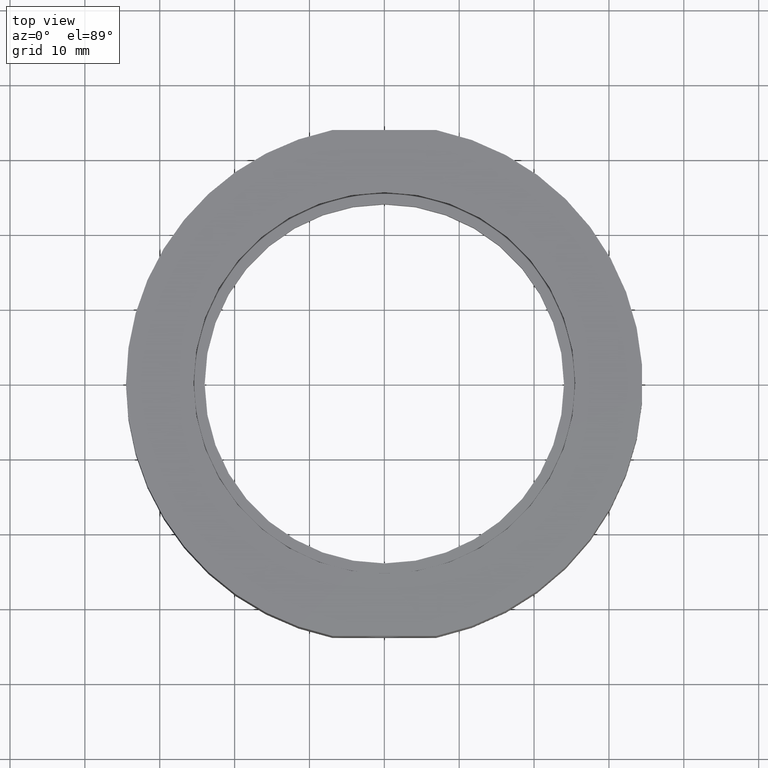
[diagram: clean part render]
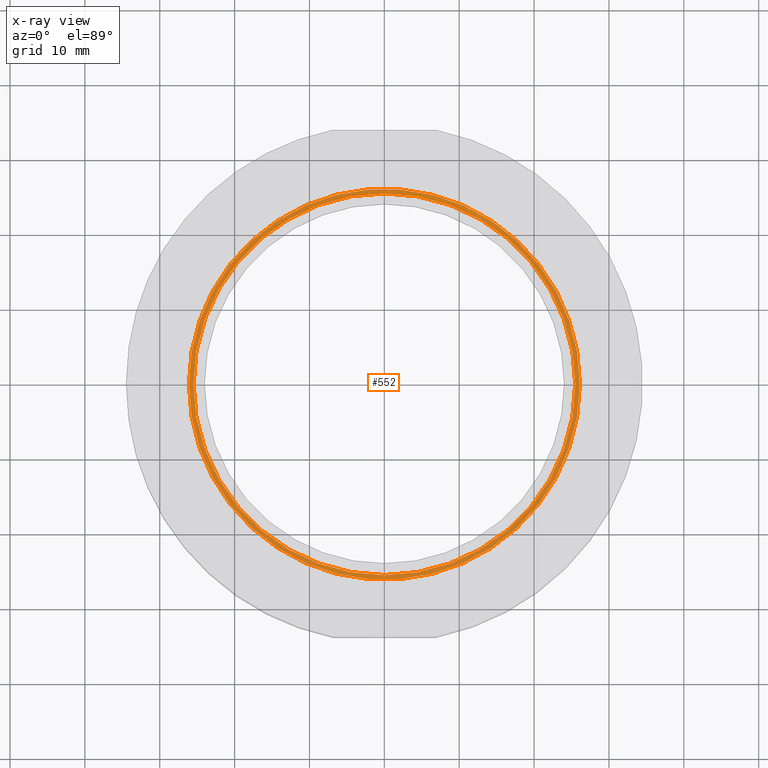
[diagram: x-ray — body ghosted, one internal face saturated and labeled with its STEP entity id]
A machine part, top view, then the same camera in x-ray: the body is ghosted and one INTERNAL B-rep face — a face not visible from any outside direction — is saturated and labeled: STEP entity #552.
In plain terms, the highlighted planar face has unit normal (-0, 0, -1).
Its self-contained STEP definition (entity closure, byte-faithful):
#20 = CARTESIAN_POINT ( 'NONE',  ( 3.544013711941110900E-015, 0.0000000000000000000, -2.999999999999999100 ) ) ;
#26 = CIRCLE ( 'NONE', #875, 25.50000000000000000 ) ;
#62 = ORIENTED_EDGE ( 'NONE', *, *, #655, .F. ) ;
#76 = CARTESIAN_POINT ( 'NONE',  ( 3.544013711941110900E-015, 0.0000000000000000000, -2.999999999999999100 ) ) ;
#109 = DIRECTION ( 'NONE',  ( -1.224646799147350500E-016, -0.0000000000000000000, -1.000000000000000000 ) ) ;
#140 = CARTESIAN_POINT ( 'NONE',  ( 25.50000000000000400, 3.122849337825750200E-015, -3.000000000000002200 ) ) ;
#157 = DIRECTION ( 'NONE',  ( -1.000000000000000000, 0.0000000000000000000, 1.190496503121338200E-016 ) ) ;
#171 = VERTEX_POINT ( 'NONE', #665 ) ;
#221 = VERTEX_POINT ( 'NONE', #140 ) ;
#230 = CIRCLE ( 'NONE', #289, 25.50000000000000000 ) ;
#231 = DIRECTION ( 'NONE',  ( -1.224646799147350500E-016, -0.0000000000000000000, -1.000000000000000000 ) ) ;
#258 = DIRECTION ( 'NONE',  ( -1.224646799147350500E-016, -0.0000000000000000000, -1.000000000000000000 ) ) ;
#289 = AXIS2_PLACEMENT_3D ( 'NONE', #20, #231, #157 ) ;
#319 = CARTESIAN_POINT ( 'NONE',  ( -25.49999999999999600, 0.0000000000000000000, -2.999999999999996000 ) ) ;
#337 = CARTESIAN_POINT ( 'NONE',  ( -26.09999999999999800, 0.0000000000000000000, -2.999999999999996000 ) ) ;
#364 = CIRCLE ( 'NONE', #940, 26.10000000000000100 ) ;
#399 = CARTESIAN_POINT ( 'NONE',  ( 3.544013711941110900E-015, 0.0000000000000000000, -2.999999999999999100 ) ) ;
#417 = EDGE_CURVE ( 'NONE', #461, #221, #230, .T. ) ;
#434 = DIRECTION ( 'NONE',  ( -1.224646799147350500E-016, -0.0000000000000000000, -1.000000000000000000 ) ) ;
#454 = AXIS2_PLACEMENT_3D ( 'NONE', #705, #258, #922 ) ;
#461 = VERTEX_POINT ( 'NONE', #319 ) ;
#534 = DIRECTION ( 'NONE',  ( -1.224646799147350500E-016, 0.0000000000000000000, -1.000000000000000000 ) ) ;
#544 = EDGE_LOOP ( 'NONE', ( #62, #590 ) ) ;
#552 = ADVANCED_FACE ( 'NONE', ( #812, #765 ), #773, .F. ) ;
#589 = EDGE_CURVE ( 'NONE', #171, #625, #364, .T. ) ;
#590 = ORIENTED_EDGE ( 'NONE', *, *, #589, .F. ) ;
#625 = VERTEX_POINT ( 'NONE', #337 ) ;
#631 = DIRECTION ( 'NONE',  ( -1.000000000000000000, 0.0000000000000000000, 1.163128767417399300E-016 ) ) ;
#655 = EDGE_CURVE ( 'NONE', #625, #171, #740, .T. ) ;
#660 = EDGE_LOOP ( 'NONE', ( #917, #768 ) ) ;
#665 = CARTESIAN_POINT ( 'NONE',  ( 26.10000000000000500, 3.196328145774592300E-015, -3.000000000000002200 ) ) ;
#690 = DIRECTION ( 'NONE',  ( -1.000000000000000000, 0.0000000000000000000, 1.224646799147350500E-016 ) ) ;
#705 = CARTESIAN_POINT ( 'NONE',  ( 3.544013711941110900E-015, 0.0000000000000000000, -2.999999999999999100 ) ) ;
#740 = CIRCLE ( 'NONE', #454, 26.10000000000000100 ) ;
#765 = FACE_BOUND ( 'NONE', #660, .T. ) ;
#768 = ORIENTED_EDGE ( 'NONE', *, *, #911, .T. ) ;
#773 = PLANE ( 'NONE',  #777 ) ;
#777 = AXIS2_PLACEMENT_3D ( 'NONE', #918, #534, #690 ) ;
#812 = FACE_OUTER_BOUND ( 'NONE', #544, .T. ) ;
#815 = DIRECTION ( 'NONE',  ( -1.000000000000000000, 0.0000000000000000000, 1.190496503121338200E-016 ) ) ;
#875 = AXIS2_PLACEMENT_3D ( 'NONE', #76, #434, #815 ) ;
#911 = EDGE_CURVE ( 'NONE', #221, #461, #26, .T. ) ;
#917 = ORIENTED_EDGE ( 'NONE', *, *, #417, .T. ) ;
#918 = CARTESIAN_POINT ( 'NONE',  ( 26.10000000000000500, 0.0000000000000000000, -3.000000000000001800 ) ) ;
#922 = DIRECTION ( 'NONE',  ( -1.000000000000000000, 0.0000000000000000000, 1.163128767417399300E-016 ) ) ;
#940 = AXIS2_PLACEMENT_3D ( 'NONE', #399, #109, #631 ) ;